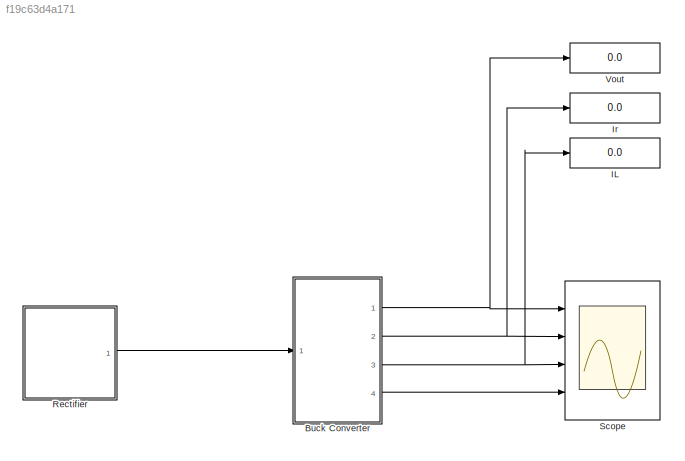
MODEL slx_f19c63d4a171
KIND model
CONFIG AbsTol = auto
CONFIG FixedStep = auto
CONFIG MaxStep = auto
CONFIG MinStep = auto
CONFIG RelTol = 1e-3
CONFIG SampleTimeConstraint = Unconstrained
CONFIG Solver = ode45
CONFIG SolverMode = Auto
CONFIG SolverName = ode45
CONFIG StartTime = 0.0
CONFIG StopTime = 0.01
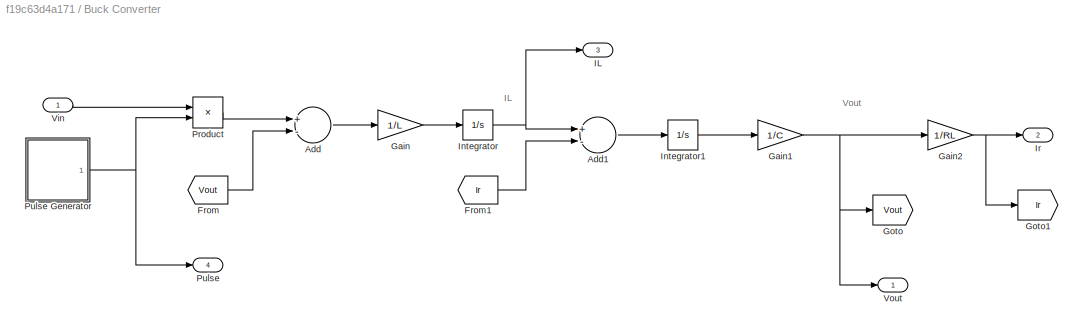
BLOCK [SubSystem] Buck Converter
  Ports = [1, 4]
  RequestExecContextInheritance = off
BLOCK [Sum] Buck Converter/Add
  InputSameDT = off
  Inputs = +-
  OutDataTypeStr = Inherit: Inherit via internal rule
  Ports = [2, 1]
  SaturateOnIntegerOverflow = off
BLOCK [Sum] Buck Converter/Add1
  InputSameDT = off
  Inputs = +-
  OutDataTypeStr = Inherit: Inherit via internal rule
  Ports = [2, 1]
  SaturateOnIntegerOverflow = off
BLOCK [From] Buck Converter/From
  GotoTag = Vout
BLOCK [From] Buck Converter/From1
  GotoTag = Ir
BLOCK [Gain] Buck Converter/Gain
  Gain = 1/L
  OutDataTypeStr = Inherit: Inherit via internal rule
  ParamDataTypeStr = Inherit: Inherit via internal rule
  SaturateOnIntegerOverflow = off
BLOCK [Gain] Buck Converter/Gain1
  Gain = 1/C
  OutDataTypeStr = Inherit: Inherit via internal rule
  ParamDataTypeStr = Inherit: Inherit via internal rule
  SaturateOnIntegerOverflow = off
BLOCK [Gain] Buck Converter/Gain2
  Gain = 1/RL
  OutDataTypeStr = Inherit: Inherit via internal rule
  ParamDataTypeStr = Inherit: Inherit via internal rule
  SaturateOnIntegerOverflow = off
BLOCK [Goto] Buck Converter/Goto
  GotoTag = Vout
BLOCK [Goto] Buck Converter/Goto1
  GotoTag = Ir
BLOCK [Outport] Buck Converter/IL
  IconDisplay = Port number
  Port = 3
BLOCK [Integrator] Buck Converter/Integrator
  Ports = [1, 1]
BLOCK [Integrator] Buck Converter/Integrator1
  Ports = [1, 1]
BLOCK [Outport] Buck Converter/Ir
  IconDisplay = Port number
  Port = 2
BLOCK [Product] Buck Converter/Product
  InputSameDT = off
  OutDataTypeStr = Inherit: Inherit via internal rule
  Ports = [2, 1]
  RndMeth = Floor
  SaturateOnIntegerOverflow = off
BLOCK [Outport] Buck Converter/Pulse
  IconDisplay = Port number
  Port = 4
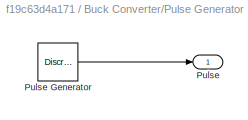
BLOCK [SubSystem] Buck Converter/Pulse Generator
  Ports = [0, 1]
  RequestExecContextInheritance = off
BLOCK [Outport] Buck Converter/Pulse Generator/Pulse
  IconDisplay = Port number
BLOCK [DiscretePulseGenerator] Buck Converter/Pulse Generator/Pulse Generator
  Period = 1/fs
  Ports = [0, 1]
  PulseType = Time based
  PulseWidth = D*100
BLOCK [Inport] Buck Converter/Vin
  IconDisplay = Port number
BLOCK [Outport] Buck Converter/Vout
  IconDisplay = Port number
BLOCK [Display] IL
  Decimation = 1
  Ports = [1]
BLOCK [Display] Ir
  Decimation = 1
  Ports = [1]
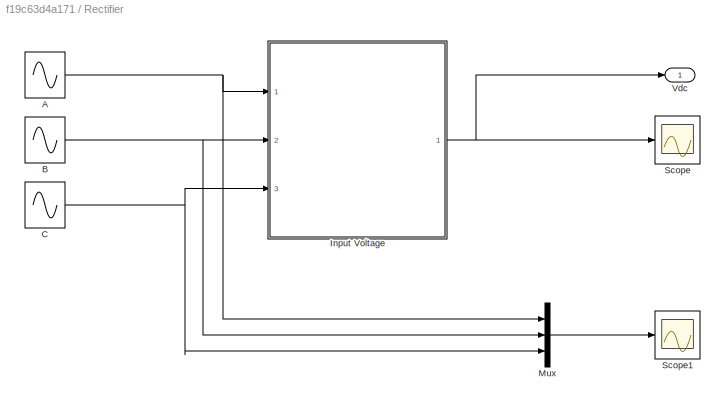
BLOCK [SubSystem] Rectifier
  Ports = [0, 1]
  RequestExecContextInheritance = off
BLOCK [Sin] Rectifier/A
  Amplitude = 230
  Frequency = 2*pi*50
  Ports = [0, 1]
  SampleTime = 0
BLOCK [Sin] Rectifier/B
  Amplitude = 230
  Frequency = 2*pi*50
  Phase = 2*pi/3
  Ports = [0, 1]
  SampleTime = 0
BLOCK [Sin] Rectifier/C
  Amplitude = 230
  Frequency = 2*pi*50
  Phase = 4*pi/3
  Ports = [0, 1]
  SampleTime = 0
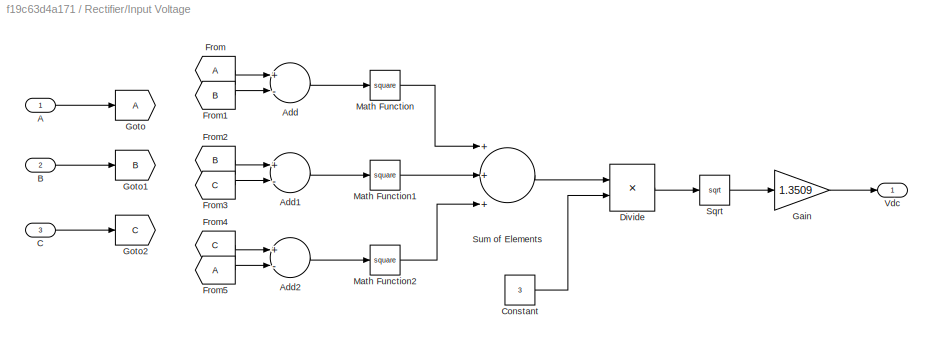
BLOCK [SubSystem] Rectifier/Input Voltage
  Ports = [3, 1]
  RequestExecContextInheritance = off
BLOCK [Inport] Rectifier/Input Voltage/A
  IconDisplay = Port number
BLOCK [Sum] Rectifier/Input Voltage/Add
  InputSameDT = off
  Inputs = +-
  OutDataTypeStr = Inherit: Inherit via internal rule
  Ports = [2, 1]
  SaturateOnIntegerOverflow = off
BLOCK [Sum] Rectifier/Input Voltage/Add1
  InputSameDT = off
  Inputs = +-
  OutDataTypeStr = Inherit: Inherit via internal rule
  Ports = [2, 1]
  SaturateOnIntegerOverflow = off
BLOCK [Sum] Rectifier/Input Voltage/Add2
  InputSameDT = off
  Inputs = +-
  OutDataTypeStr = Inherit: Inherit via internal rule
  Ports = [2, 1]
  SaturateOnIntegerOverflow = off
BLOCK [Inport] Rectifier/Input Voltage/B
  IconDisplay = Port number
  Port = 2
BLOCK [Inport] Rectifier/Input Voltage/C
  IconDisplay = Port number
  Port = 3
BLOCK [Constant] Rectifier/Input Voltage/Constant
  Value = 3
BLOCK [Product] Rectifier/Input Voltage/Divide
  InputSameDT = off
  Inputs = */
  OutDataTypeStr = Inherit: Inherit via internal rule
  Ports = [2, 1]
  RndMeth = Floor
  SaturateOnIntegerOverflow = off
BLOCK [From] Rectifier/Input Voltage/From
BLOCK [From] Rectifier/Input Voltage/From1
  GotoTag = B
BLOCK [From] Rectifier/Input Voltage/From2
  GotoTag = B
BLOCK [From] Rectifier/Input Voltage/From3
  GotoTag = C
BLOCK [From] Rectifier/Input Voltage/From4
  GotoTag = C
BLOCK [From] Rectifier/Input Voltage/From5
BLOCK [Gain] Rectifier/Input Voltage/Gain
  Gain = 1.3509
  OutDataTypeStr = Inherit: Inherit via internal rule
  ParamDataTypeStr = Inherit: Inherit via internal rule
  SaturateOnIntegerOverflow = off
BLOCK [Goto] Rectifier/Input Voltage/Goto
BLOCK [Goto] Rectifier/Input Voltage/Goto1
  GotoTag = B
BLOCK [Goto] Rectifier/Input Voltage/Goto2
  GotoTag = C
BLOCK [Math] Rectifier/Input Voltage/Math Function
  Operator = square
  Ports = [1, 1]
BLOCK [Math] Rectifier/Input Voltage/Math Function1
  Operator = square
  Ports = [1, 1]
BLOCK [Math] Rectifier/Input Voltage/Math Function2
  Operator = square
  Ports = [1, 1]
BLOCK [Sqrt] Rectifier/Input Voltage/Sqrt
BLOCK [Sum] Rectifier/Input Voltage/Sum of Elements
  InputSameDT = off
  Inputs = +++
  OutDataTypeStr = Inherit: Inherit via internal rule
  Ports = [3, 1]
  SaturateOnIntegerOverflow = off
BLOCK [Outport] Rectifier/Input Voltage/Vdc
  IconDisplay = Port number
BLOCK [Mux] Rectifier/Mux
  DisplayOption = bar
  Inputs = 3
  Ports = [3, 1]
BLOCK [Scope] Rectifier/Scope
  Floating = off
  LimitDataPoints = off
  NumInputPorts = 1
  Ports = [1]
BLOCK [Scope] Rectifier/Scope1
  Floating = off
  LimitDataPoints = off
  NumInputPorts = 1
  Ports = [1]
  SaveName = ScopeData1
BLOCK [Outport] Rectifier/Vdc
  IconDisplay = Port number
BLOCK [Scope] Scope
  Floating = off
  LimitDataPoints = off
  NumInputPorts = 4
  Ports = [4]
  SaveName = ScopeData2
  YMax = 5~5~5~5
  YMin = -5~-5~-5~-5
BLOCK [Display] Vout
  Decimation = 1
  Ports = [1]
ANNOTATION Buck Converter: IL
ANNOTATION Buck Converter: Vout
LINE Buck Converter/Add1:1 -> Buck Converter/Integrator1:1
LINE Buck Converter/Add:1 -> Buck Converter/Gain:1
LINE Buck Converter/From1:1 -> Buck Converter/Add1:2
LINE Buck Converter/From:1 -> Buck Converter/Add:2
NET Buck Converter/Gain1:1 -> Buck Converter/Gain2:1, Buck Converter/Goto:1, Buck Converter/Vout:1
NET Buck Converter/Gain2:1 -> Buck Converter/Goto1:1, Buck Converter/Ir:1
LINE Buck Converter/Gain:1 -> Buck Converter/Integrator:1
LINE Buck Converter/Integrator1:1 -> Buck Converter/Gain1:1
NET Buck Converter/Integrator:1 -> Buck Converter/Add1:1, Buck Converter/IL:1
LINE Buck Converter/Product:1 -> Buck Converter/Add:1
LINE Buck Converter/Pulse Generator/Pulse Generator:1 -> Buck Converter/Pulse Generator/Pulse:1
NET Buck Converter/Pulse Generator:1 -> Buck Converter/Product:2, Buck Converter/Pulse:1
LINE Buck Converter/Vin:1 -> Buck Converter/Product:1
NET Buck Converter:1 -> Scope:1, Vout:1
NET Buck Converter:2 -> Ir:1, Scope:2
NET Buck Converter:3 -> IL:1, Scope:3
LINE Buck Converter:4 -> Scope:4
NET Rectifier/A:1 -> Rectifier/Input Voltage:1, Rectifier/Mux:1
NET Rectifier/B:1 -> Rectifier/Input Voltage:2, Rectifier/Mux:2
NET Rectifier/C:1 -> Rectifier/Input Voltage:3, Rectifier/Mux:3
LINE Rectifier/Input Voltage/A:1 -> Rectifier/Input Voltage/Goto:1
LINE Rectifier/Input Voltage/Add1:1 -> Rectifier/Input Voltage/Math Function1:1
LINE Rectifier/Input Voltage/Add2:1 -> Rectifier/Input Voltage/Math Function2:1
LINE Rectifier/Input Voltage/Add:1 -> Rectifier/Input Voltage/Math Function:1
LINE Rectifier/Input Voltage/B:1 -> Rectifier/Input Voltage/Goto1:1
LINE Rectifier/Input Voltage/C:1 -> Rectifier/Input Voltage/Goto2:1
LINE Rectifier/Input Voltage/Constant:1 -> Rectifier/Input Voltage/Divide:2
LINE Rectifier/Input Voltage/Divide:1 -> Rectifier/Input Voltage/Sqrt:1
LINE Rectifier/Input Voltage/From1:1 -> Rectifier/Input Voltage/Add:2
LINE Rectifier/Input Voltage/From2:1 -> Rectifier/Input Voltage/Add1:1
LINE Rectifier/Input Voltage/From3:1 -> Rectifier/Input Voltage/Add1:2
LINE Rectifier/Input Voltage/From4:1 -> Rectifier/Input Voltage/Add2:1
LINE Rectifier/Input Voltage/From5:1 -> Rectifier/Input Voltage/Add2:2
LINE Rectifier/Input Voltage/From:1 -> Rectifier/Input Voltage/Add:1
LINE Rectifier/Input Voltage/Gain:1 -> Rectifier/Input Voltage/Vdc:1
LINE Rectifier/Input Voltage/Math Function1:1 -> Rectifier/Input Voltage/Sum of Elements:2
LINE Rectifier/Input Voltage/Math Function2:1 -> Rectifier/Input Voltage/Sum of Elements:3
LINE Rectifier/Input Voltage/Math Function:1 -> Rectifier/Input Voltage/Sum of Elements:1
LINE Rectifier/Input Voltage/Sqrt:1 -> Rectifier/Input Voltage/Gain:1
LINE Rectifier/Input Voltage/Sum of Elements:1 -> Rectifier/Input Voltage/Divide:1
NET Rectifier/Input Voltage:1 -> Rectifier/Scope:1, Rectifier/Vdc:1
LINE Rectifier/Mux:1 -> Rectifier/Scope1:1
LINE Rectifier:1 -> Buck Converter:1
note: NET lines group one-source signal fan-out (src -> all destinations, sorted); 1:1 wires keep LINE
